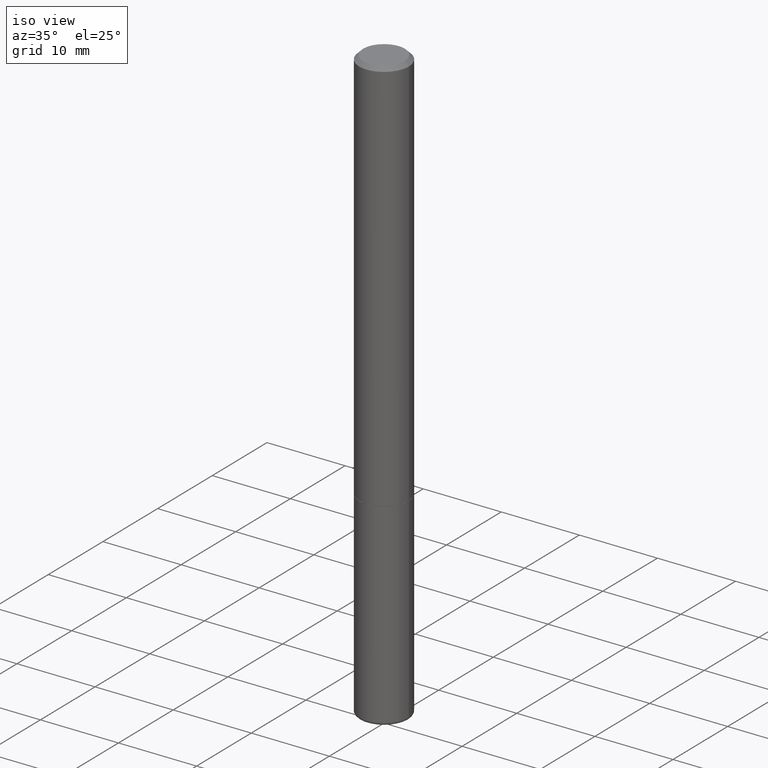
[diagram: clean part render]
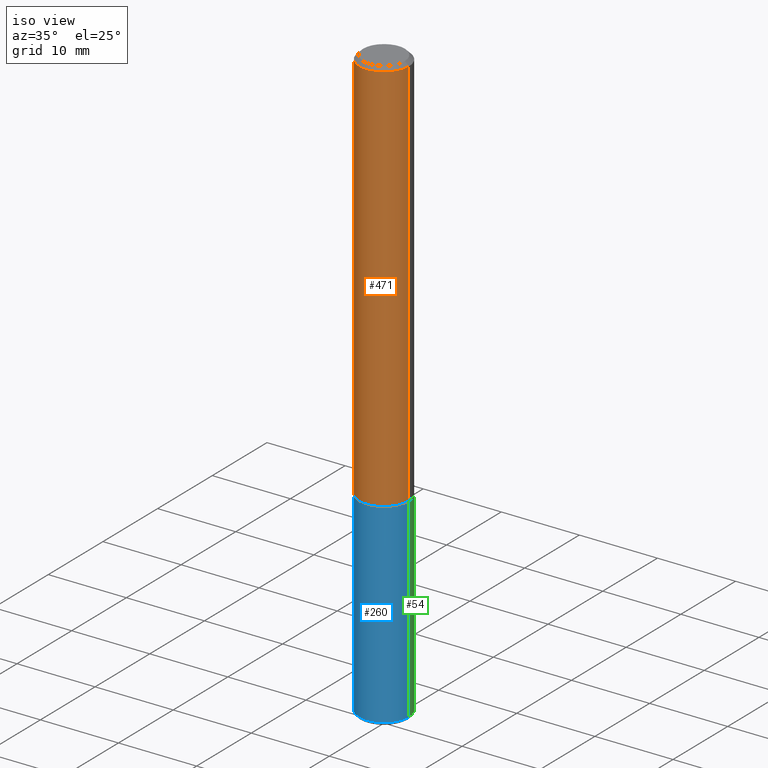
[diagram: same view with three faces highlighted in distinct colors, each labeled with its STEP entity id]
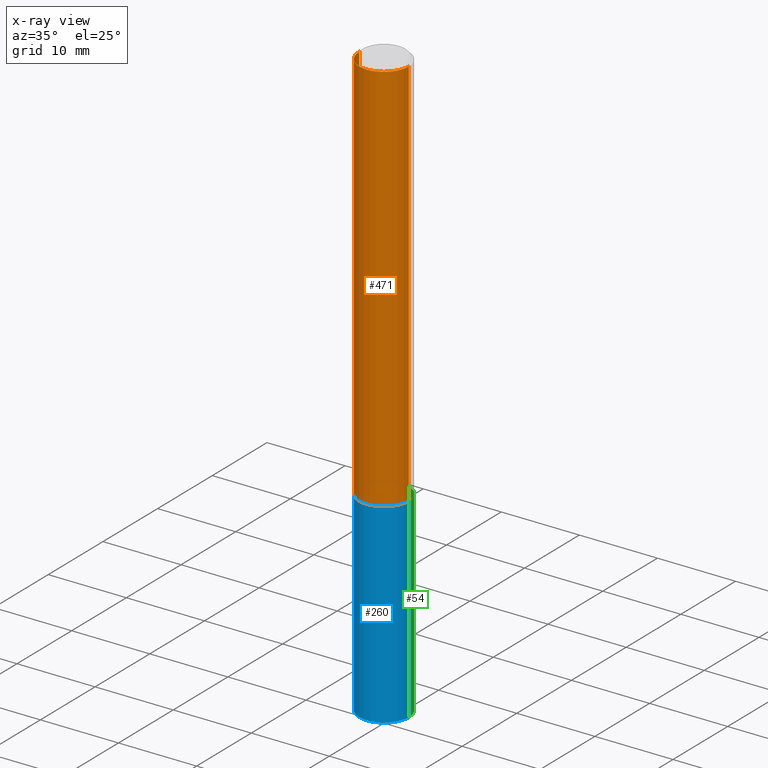
[diagram: x-ray of the same camera — body ghosted, the three highlighted faces saturated]
A machine part, iso view with three faces highlighted in distinct colors.
The next image is the same camera in x-ray (body ghosted, the three faces saturated) — at least one of them is partly hidden behind the body in this view.
Their STEP definitions:

[orange] entity #471 — the highlighted cylindrical surface (edge-blend (fillet) strip) has radius 3.175 mm, axis along (-0, 0, 1).
#16 = EDGE_LOOP ( 'NONE', ( #72, #26, #176, #394 ) ) ;
#26 = ORIENTED_EDGE ( 'NONE', *, *, #253, .T. ) ;
#30 = CARTESIAN_POINT ( 'NONE',  ( 4.890937612370296805E-31, -6.982962677686323656E-17, -0.02000000000000009409 ) ) ;
#33 = AXIS2_PLACEMENT_3D ( 'NONE', #288, #212, #173 ) ;
#42 = VERTEX_POINT ( 'NONE', #278 ) ;
#44 = DIRECTION ( 'NONE',  ( -2.445468806185136877E-29, 3.491481338843145188E-15, 1.000000000000000000 ) ) ;
#55 = FACE_OUTER_BOUND ( 'NONE', #16, .T. ) ;
#72 = ORIENTED_EDGE ( 'NONE', *, *, #187, .F. ) ;
#80 = LINE ( 'NONE', #383, #452 ) ;
#105 = DIRECTION ( 'NONE',  ( -2.445468806185136597E-29, 3.491481338843145583E-15, 1.000000000000000000 ) ) ;
#115 = LINE ( 'NONE', #279, #188 ) ;
#143 = CARTESIAN_POINT ( 'NONE',  ( -0.1249999999999992090, 8.030407079339147158E-16, -0.02000000000000009409 ) ) ;
#157 = CARTESIAN_POINT ( 'NONE',  ( 0.1250000000000000278, -7.852341531058232286E-15, -1.999000000000000110 ) ) ;
#173 = DIRECTION ( 'NONE',  ( 1.000000000000000000, -6.982962677686266711E-15, 4.876176775795935793E-29 ) ) ;
#176 = ORIENTED_EDGE ( 'NONE', *, *, #380, .T. ) ;
#187 = EDGE_CURVE ( 'NONE', #42, #300, #80, .T. ) ;
#188 = VECTOR ( 'NONE', #271, 39.37007874015748143 ) ;
#193 = CARTESIAN_POINT ( 'NONE',  ( 4.888492143564088712E-29, -6.979471196347448158E-15, -1.999000000000000110 ) ) ;
#206 = VERTEX_POINT ( 'NONE', #157 ) ;
#212 = DIRECTION ( 'NONE',  ( -2.445468806185136597E-29, 3.491481338843145583E-15, 1.000000000000000000 ) ) ;
#219 = EDGE_CURVE ( 'NONE', #300, #371, #330, .T. ) ;
#225 = AXIS2_PLACEMENT_3D ( 'NONE', #193, #335, #488 ) ;
#253 = EDGE_CURVE ( 'NONE', #42, #206, #437, .T. ) ;
#255 = CYLINDRICAL_SURFACE ( 'NONE', #33, 0.1249999999999996253 ) ;
#270 = DIRECTION ( 'NONE',  ( 1.000000000000000000, -6.982962677686267499E-15, 0.000000000000000000 ) ) ;
#271 = DIRECTION ( 'NONE',  ( -2.445468806185136877E-29, 3.491481338843145188E-15, 1.000000000000000000 ) ) ;
#278 = CARTESIAN_POINT ( 'NONE',  ( -0.1250000000000000278, -2.636471991862018663E-15, -1.999000000000000110 ) ) ;
#279 = CARTESIAN_POINT ( 'NONE',  ( 0.1249999999999996253, -8.728703347107806764E-16, 6.095220969744901524E-30 ) ) ;
#288 = CARTESIAN_POINT ( 'NONE',  ( 0.000000000000000000, 0.000000000000000000, 0.000000000000000000 ) ) ;
#300 = VERTEX_POINT ( 'NONE', #143 ) ;
#330 = CIRCLE ( 'NONE', #480, 0.1249999999999992090 ) ;
#335 = DIRECTION ( 'NONE',  ( -2.445468806185136597E-29, 3.491481338843145583E-15, 1.000000000000000000 ) ) ;
#371 = VERTEX_POINT ( 'NONE', #429 ) ;
#380 = EDGE_CURVE ( 'NONE', #206, #371, #115, .T. ) ;
#383 = CARTESIAN_POINT ( 'NONE',  ( -0.1249999999999996253, 8.881784197001225699E-16, -6.148668862818613310E-30 ) ) ;
#394 = ORIENTED_EDGE ( 'NONE', *, *, #219, .F. ) ;
#429 = CARTESIAN_POINT ( 'NONE',  ( 0.1249999999999992090, -9.273918764982992215E-16, -0.02000000000000009409 ) ) ;
#437 = CIRCLE ( 'NONE', #225, 0.1250000000000000278 ) ;
#452 = VECTOR ( 'NONE', #44, 39.37007874015748143 ) ;
#471 = ADVANCED_FACE ( 'NONE', ( #55 ), #255, .T. ) ;
#480 = AXIS2_PLACEMENT_3D ( 'NONE', #30, #105, #270 ) ;
#488 = DIRECTION ( 'NONE',  ( 1.000000000000000000, -6.982962677686269077E-15, 0.000000000000000000 ) ) ;

[blue] entity #260 — the highlighted cylindrical surface (edge-blend (fillet) strip) has radius 3.175 mm, axis along (-0, 0, 1).
#6 = CARTESIAN_POINT ( 'NONE',  ( 0.1250000000000000278, -8.728703347107836346E-16, 6.095220969744921142E-30 ) ) ;
#34 = ORIENTED_EDGE ( 'NONE', *, *, #265, .F. ) ;
#45 = CARTESIAN_POINT ( 'NONE',  ( 0.1250000000000000278, -7.855833012397075293E-15, -2.000000000000000444 ) ) ;
#58 = EDGE_CURVE ( 'NONE', #224, #74, #207, .T. ) ;
#62 = CARTESIAN_POINT ( 'NONE',  ( -0.1250000000000000278, 8.881784197001254296E-16, -6.148668862818634329E-30 ) ) ;
#65 = ORIENTED_EDGE ( 'NONE', *, *, #324, .F. ) ;
#68 = EDGE_LOOP ( 'NONE', ( #65, #392, #491, #34 ) ) ;
#74 = VERTEX_POINT ( 'NONE', #45 ) ;
#77 = AXIS2_PLACEMENT_3D ( 'NONE', #457, #231, #372 ) ;
#93 = AXIS2_PLACEMENT_3D ( 'NONE', #244, #124, #313 ) ;
#102 = DIRECTION ( 'NONE',  ( -2.445468806185136877E-29, 3.491481338843145188E-15, 1.000000000000000000 ) ) ;
#110 = CARTESIAN_POINT ( 'NONE',  ( 0.000000000000000000, 0.000000000000000000, 0.000000000000000000 ) ) ;
#118 = VECTOR ( 'NONE', #102, 39.37007874015748143 ) ;
#124 = DIRECTION ( 'NONE',  ( -2.445468806185136597E-29, 3.491481338843145583E-15, 1.000000000000000000 ) ) ;
#136 = CIRCLE ( 'NONE', #77, 0.1250000000000000278 ) ;
#150 = CARTESIAN_POINT ( 'NONE',  ( -0.1250000000000000278, -7.814339814453245950E-15, -2.985000571154037274 ) ) ;
#154 = VERTEX_POINT ( 'NONE', #228 ) ;
#171 = CIRCLE ( 'NONE', #93, 0.1250000000000000278 ) ;
#175 = VECTOR ( 'NONE', #463, 39.37007874015748143 ) ;
#195 = CARTESIAN_POINT ( 'NONE',  ( 0.1250000000000000278, -1.129494412533123533E-14, -2.985000571154037274 ) ) ;
#207 = LINE ( 'NONE', #6, #175 ) ;
#224 = VERTEX_POINT ( 'NONE', #195 ) ;
#228 = CARTESIAN_POINT ( 'NONE',  ( -0.1250000000000000278, -7.814339814453245950E-15, -2.000000000000000444 ) ) ;
#231 = DIRECTION ( 'NONE',  ( -2.445468806185136597E-29, 3.491481338843145583E-15, 1.000000000000000000 ) ) ;
#244 = CARTESIAN_POINT ( 'NONE',  ( 7.299725783202013722E-29, -1.042207379062045199E-14, -2.985000571154037274 ) ) ;
#257 = VERTEX_POINT ( 'NONE', #150 ) ;
#260 = ADVANCED_FACE ( 'NONE', ( #307 ), #454, .T. ) ;
#265 = EDGE_CURVE ( 'NONE', #154, #74, #136, .T. ) ;
#268 = DIRECTION ( 'NONE',  ( -2.445468806185136597E-29, 3.491481338843145583E-15, 1.000000000000000000 ) ) ;
#290 = AXIS2_PLACEMENT_3D ( 'NONE', #110, #268, #340 ) ;
#307 = FACE_OUTER_BOUND ( 'NONE', #68, .T. ) ;
#313 = DIRECTION ( 'NONE',  ( 1.000000000000000000, -6.982962677686261189E-15, 0.000000000000000000 ) ) ;
#324 = EDGE_CURVE ( 'NONE', #257, #154, #482, .T. ) ;
#340 = DIRECTION ( 'NONE',  ( 1.000000000000000000, -6.982962677686267499E-15, 4.876176775795935793E-29 ) ) ;
#372 = DIRECTION ( 'NONE',  ( 1.000000000000000000, -6.982962677686269077E-15, 0.000000000000000000 ) ) ;
#392 = ORIENTED_EDGE ( 'NONE', *, *, #398, .T. ) ;
#398 = EDGE_CURVE ( 'NONE', #257, #224, #171, .T. ) ;
#454 = CYLINDRICAL_SURFACE ( 'NONE', #290, 0.1250000000000000278 ) ;
#457 = CARTESIAN_POINT ( 'NONE',  ( 4.890937612370273754E-29, -6.982962677686291954E-15, -2.000000000000000444 ) ) ;
#463 = DIRECTION ( 'NONE',  ( -2.445468806185136877E-29, 3.491481338843145188E-15, 1.000000000000000000 ) ) ;
#482 = LINE ( 'NONE', #62, #118 ) ;
#491 = ORIENTED_EDGE ( 'NONE', *, *, #58, .T. ) ;

[green] entity #54 — the highlighted cylindrical surface (edge-blend (fillet) strip) has radius 3.175 mm, axis along (-0, 0, 1).
#6 = CARTESIAN_POINT ( 'NONE',  ( 0.1250000000000000278, -8.728703347107836346E-16, 6.095220969744921142E-30 ) ) ;
#45 = CARTESIAN_POINT ( 'NONE',  ( 0.1250000000000000278, -7.855833012397075293E-15, -2.000000000000000444 ) ) ;
#48 = CARTESIAN_POINT ( 'NONE',  ( 0.000000000000000000, 0.000000000000000000, 0.000000000000000000 ) ) ;
#50 = CYLINDRICAL_SURFACE ( 'NONE', #449, 0.1250000000000000278 ) ;
#54 = ADVANCED_FACE ( 'NONE', ( #356 ), #50, .T. ) ;
#58 = EDGE_CURVE ( 'NONE', #224, #74, #207, .T. ) ;
#61 = ORIENTED_EDGE ( 'NONE', *, *, #466, .F. ) ;
#62 = CARTESIAN_POINT ( 'NONE',  ( -0.1250000000000000278, 8.881784197001254296E-16, -6.148668862818634329E-30 ) ) ;
#74 = VERTEX_POINT ( 'NONE', #45 ) ;
#102 = DIRECTION ( 'NONE',  ( -2.445468806185136877E-29, 3.491481338843145188E-15, 1.000000000000000000 ) ) ;
#118 = VECTOR ( 'NONE', #102, 39.37007874015748143 ) ;
#130 = ORIENTED_EDGE ( 'NONE', *, *, #324, .T. ) ;
#150 = CARTESIAN_POINT ( 'NONE',  ( -0.1250000000000000278, -7.814339814453245950E-15, -2.985000571154037274 ) ) ;
#152 = AXIS2_PLACEMENT_3D ( 'NONE', #256, #399, #362 ) ;
#154 = VERTEX_POINT ( 'NONE', #228 ) ;
#175 = VECTOR ( 'NONE', #463, 39.37007874015748143 ) ;
#195 = CARTESIAN_POINT ( 'NONE',  ( 0.1250000000000000278, -1.129494412533123533E-14, -2.985000571154037274 ) ) ;
#207 = LINE ( 'NONE', #6, #175 ) ;
#224 = VERTEX_POINT ( 'NONE', #195 ) ;
#228 = CARTESIAN_POINT ( 'NONE',  ( -0.1250000000000000278, -7.814339814453245950E-15, -2.000000000000000444 ) ) ;
#252 = ORIENTED_EDGE ( 'NONE', *, *, #58, .F. ) ;
#256 = CARTESIAN_POINT ( 'NONE',  ( 7.299725783202013722E-29, -1.042207379062045199E-14, -2.985000571154037274 ) ) ;
#257 = VERTEX_POINT ( 'NONE', #150 ) ;
#282 = DIRECTION ( 'NONE',  ( -2.445468806185136597E-29, 3.491481338843145583E-15, 1.000000000000000000 ) ) ;
#303 = EDGE_CURVE ( 'NONE', #224, #257, #346, .T. ) ;
#323 = DIRECTION ( 'NONE',  ( 1.000000000000000000, -6.982962677686269077E-15, 0.000000000000000000 ) ) ;
#324 = EDGE_CURVE ( 'NONE', #257, #154, #482, .T. ) ;
#338 = AXIS2_PLACEMENT_3D ( 'NONE', #473, #357, #323 ) ;
#346 = CIRCLE ( 'NONE', #152, 0.1250000000000000278 ) ;
#356 = FACE_OUTER_BOUND ( 'NONE', #367, .T. ) ;
#357 = DIRECTION ( 'NONE',  ( -2.445468806185136597E-29, 3.491481338843145583E-15, 1.000000000000000000 ) ) ;
#362 = DIRECTION ( 'NONE',  ( 1.000000000000000000, -6.982962677686261189E-15, 0.000000000000000000 ) ) ;
#367 = EDGE_LOOP ( 'NONE', ( #464, #130, #61, #252 ) ) ;
#399 = DIRECTION ( 'NONE',  ( -2.445468806185136597E-29, 3.491481338843145583E-15, 1.000000000000000000 ) ) ;
#432 = CIRCLE ( 'NONE', #338, 0.1250000000000000278 ) ;
#449 = AXIS2_PLACEMENT_3D ( 'NONE', #48, #282, #458 ) ;
#458 = DIRECTION ( 'NONE',  ( 1.000000000000000000, -6.982962677686267499E-15, 4.876176775795935793E-29 ) ) ;
#463 = DIRECTION ( 'NONE',  ( -2.445468806185136877E-29, 3.491481338843145188E-15, 1.000000000000000000 ) ) ;
#464 = ORIENTED_EDGE ( 'NONE', *, *, #303, .T. ) ;
#466 = EDGE_CURVE ( 'NONE', #74, #154, #432, .T. ) ;
#473 = CARTESIAN_POINT ( 'NONE',  ( 4.890937612370273754E-29, -6.982962677686291954E-15, -2.000000000000000444 ) ) ;
#482 = LINE ( 'NONE', #62, #118 ) ;